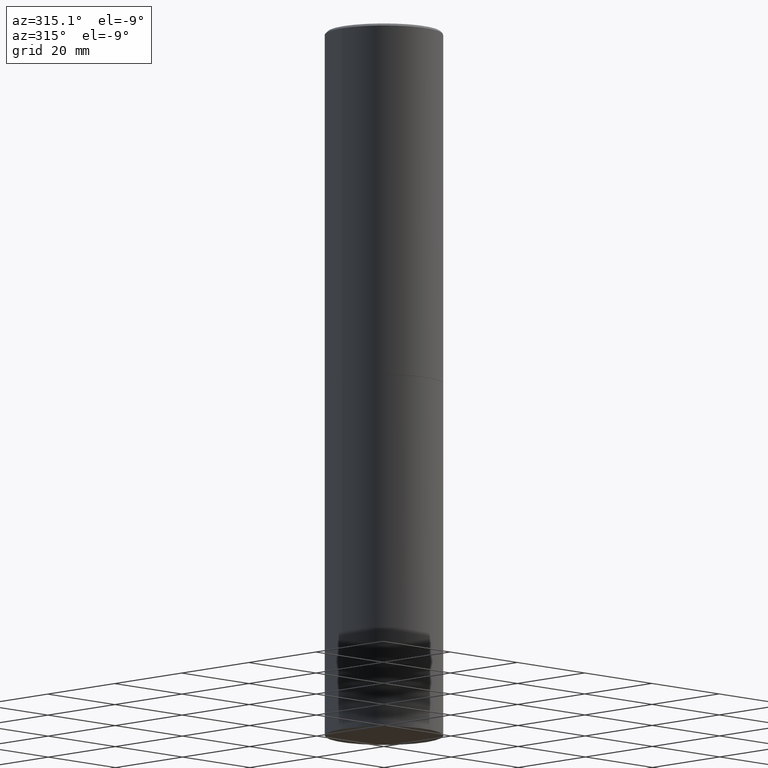
[diagram: clean part render]
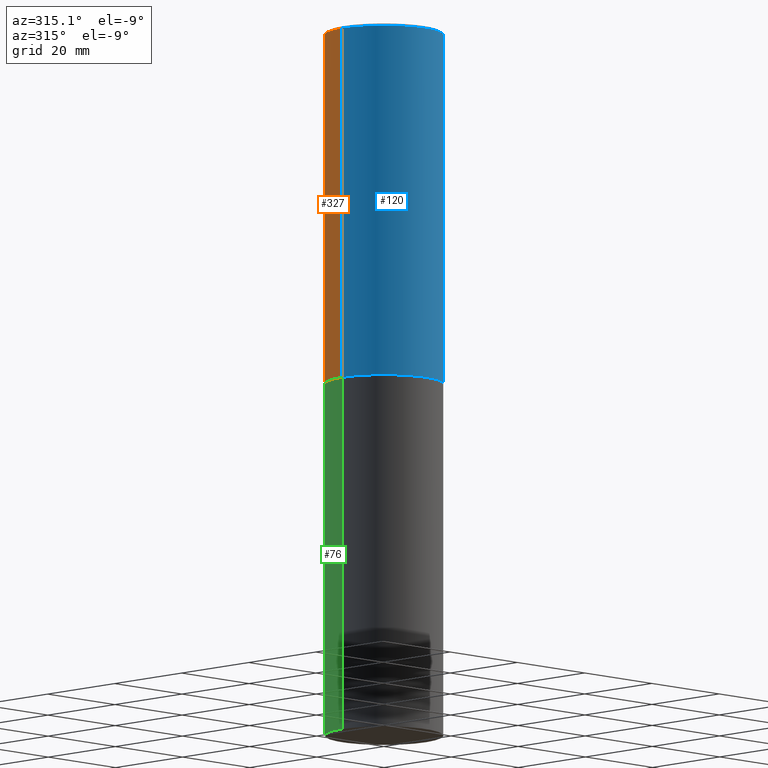
[diagram: same view with three faces highlighted in distinct colors, each labeled with its STEP entity id]
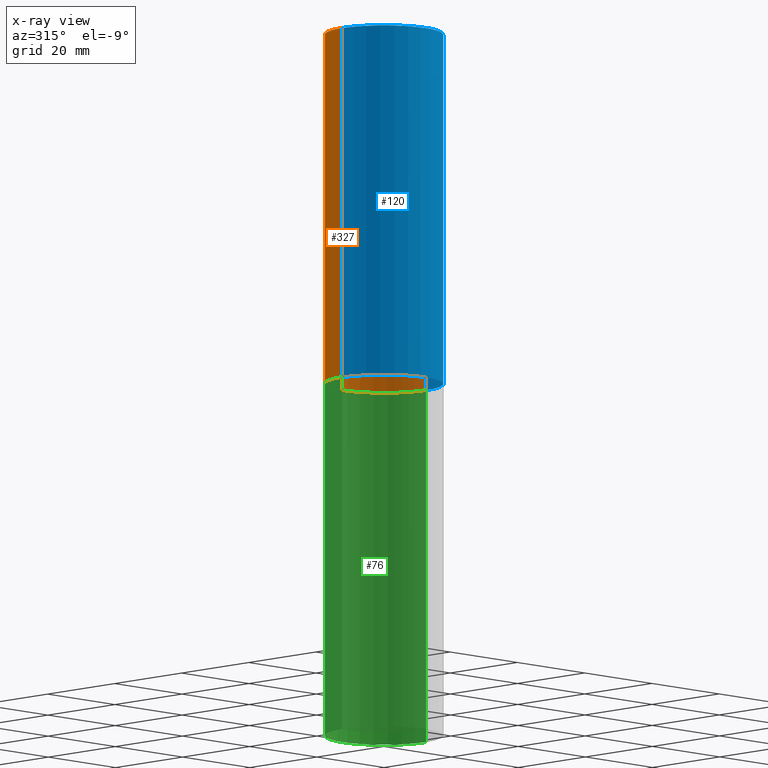
[diagram: x-ray of the same camera — body ghosted, the three highlighted faces saturated]
A machine part, auxiliary view with three faces highlighted in distinct colors.
The next image is the same camera in x-ray (body ghosted, the three faces saturated) — at least one of them is partly hidden behind the body in this view.
Their STEP definitions:

[orange] entity #327 — the highlighted cylindrical surface (partial cylindrical patch) has radius 12.5006 mm, axis along (-0, 0, 1).
#2 = VERTEX_POINT ( 'NONE', #101 ) ;
#18 = ORIENTED_EDGE ( 'NONE', *, *, #365, .T. ) ;
#20 = DIRECTION ( 'NONE',  ( 1.000000000000000000, -6.982962677686265922E-15, 0.000000000000000000 ) ) ;
#21 = LINE ( 'NONE', #43, #293 ) ;
#25 = VERTEX_POINT ( 'NONE', #50 ) ;
#36 = EDGE_CURVE ( 'NONE', #25, #310, #21, .T. ) ;
#43 = CARTESIAN_POINT ( 'NONE',  ( -0.4921499999999998098, 3.496936074043331714E-15, -2.420853904668950949E-29 ) ) ;
#44 = EDGE_CURVE ( 'NONE', #2, #302, #255, .T. ) ;
#47 = ORIENTED_EDGE ( 'NONE', *, *, #36, .T. ) ;
#50 = CARTESIAN_POINT ( 'NONE',  ( -0.4921499999999999764, -1.690881473276754954E-15, -2.951700000000000212 ) ) ;
#54 = AXIS2_PLACEMENT_3D ( 'NONE', #356, #69, #308 ) ;
#55 = EDGE_CURVE ( 'NONE', #302, #310, #162, .T. ) ;
#69 = DIRECTION ( 'NONE',  ( -2.445468806185136597E-29, 3.491481338843145583E-15, 1.000000000000000000 ) ) ;
#88 = FACE_OUTER_BOUND ( 'NONE', #170, .T. ) ;
#101 = CARTESIAN_POINT ( 'NONE',  ( 0.4921499999999999764, -1.374247054968660936E-14, -2.951700000000000212 ) ) ;
#117 = AXIS2_PLACEMENT_3D ( 'NONE', #359, #259, #20 ) ;
#134 = DIRECTION ( 'NONE',  ( -2.445468806185136877E-29, 3.491481338843145188E-15, 1.000000000000000000 ) ) ;
#162 = CIRCLE ( 'NONE', #54, 0.4921499999999996988 ) ;
#166 = CARTESIAN_POINT ( 'NONE',  ( -0.4921499999999996988, 3.366835455046430506E-15, -0.02000000000000009409 ) ) ;
#170 = EDGE_LOOP ( 'NONE', ( #18, #47, #335, #363 ) ) ;
#187 = DIRECTION ( 'NONE',  ( -2.445468806185136877E-29, 3.491481338843145188E-15, 1.000000000000000000 ) ) ;
#192 = DIRECTION ( 'NONE',  ( 1.000000000000000000, -6.982962677686265922E-15, 4.876176775795935793E-29 ) ) ;
#216 = CARTESIAN_POINT ( 'NONE',  ( 0.4921499999999998098, -3.436665081823294593E-15, 2.399810400207968762E-29 ) ) ;
#227 = DIRECTION ( 'NONE',  ( -2.445468806185136597E-29, 3.491481338843145583E-15, 1.000000000000000000 ) ) ;
#255 = LINE ( 'NONE', #216, #289 ) ;
#256 = CIRCLE ( 'NONE', #117, 0.4921499999999999764 ) ;
#259 = DIRECTION ( 'NONE',  ( -2.445468806185136597E-29, 3.491481338843145583E-15, 1.000000000000000000 ) ) ;
#289 = VECTOR ( 'NONE', #187, 39.37007874015748143 ) ;
#290 = CARTESIAN_POINT ( 'NONE',  ( 0.4921499999999996988, -3.446223716380120377E-15, -0.02000000000000009409 ) ) ;
#293 = VECTOR ( 'NONE', #134, 39.37007874015748143 ) ;
#294 = AXIS2_PLACEMENT_3D ( 'NONE', #343, #227, #192 ) ;
#302 = VERTEX_POINT ( 'NONE', #290 ) ;
#308 = DIRECTION ( 'NONE',  ( 1.000000000000000000, -6.982962677686265922E-15, 0.000000000000000000 ) ) ;
#310 = VERTEX_POINT ( 'NONE', #166 ) ;
#327 = ADVANCED_FACE ( 'NONE', ( #88 ), #339, .T. ) ;
#335 = ORIENTED_EDGE ( 'NONE', *, *, #55, .F. ) ;
#339 = CYLINDRICAL_SURFACE ( 'NONE', #294, 0.4921499999999998098 ) ;
#343 = CARTESIAN_POINT ( 'NONE',  ( 0.000000000000000000, 0.000000000000000000, 0.000000000000000000 ) ) ;
#356 = CARTESIAN_POINT ( 'NONE',  ( 4.890937612370296805E-31, -6.982962677686323656E-17, -0.02000000000000009409 ) ) ;
#359 = CARTESIAN_POINT ( 'NONE',  ( 7.218290275216666916E-29, -1.030580546786331359E-14, -2.951700000000000212 ) ) ;
#363 = ORIENTED_EDGE ( 'NONE', *, *, #44, .F. ) ;
#365 = EDGE_CURVE ( 'NONE', #2, #25, #256, .T. ) ;

[blue] entity #120 — the highlighted cylindrical surface (partial cylindrical patch) has radius 12.5006 mm, axis along (-0, 0, 1).
#2 = VERTEX_POINT ( 'NONE', #101 ) ;
#6 = CARTESIAN_POINT ( 'NONE',  ( 0.000000000000000000, 0.000000000000000000, 0.000000000000000000 ) ) ;
#21 = LINE ( 'NONE', #43, #293 ) ;
#22 = AXIS2_PLACEMENT_3D ( 'NONE', #6, #149, #177 ) ;
#25 = VERTEX_POINT ( 'NONE', #50 ) ;
#34 = AXIS2_PLACEMENT_3D ( 'NONE', #154, #243, #292 ) ;
#36 = EDGE_CURVE ( 'NONE', #25, #310, #21, .T. ) ;
#42 = DIRECTION ( 'NONE',  ( -2.445468806185136597E-29, 3.491481338843145583E-15, 1.000000000000000000 ) ) ;
#43 = CARTESIAN_POINT ( 'NONE',  ( -0.4921499999999998098, 3.496936074043331714E-15, -2.420853904668950949E-29 ) ) ;
#44 = EDGE_CURVE ( 'NONE', #2, #302, #255, .T. ) ;
#50 = CARTESIAN_POINT ( 'NONE',  ( -0.4921499999999999764, -1.690881473276754954E-15, -2.951700000000000212 ) ) ;
#53 = ORIENTED_EDGE ( 'NONE', *, *, #357, .T. ) ;
#73 = CARTESIAN_POINT ( 'NONE',  ( 7.218290275216666916E-29, -1.030580546786331359E-14, -2.951700000000000212 ) ) ;
#99 = EDGE_CURVE ( 'NONE', #310, #302, #105, .T. ) ;
#101 = CARTESIAN_POINT ( 'NONE',  ( 0.4921499999999999764, -1.374247054968660936E-14, -2.951700000000000212 ) ) ;
#105 = CIRCLE ( 'NONE', #34, 0.4921499999999996988 ) ;
#120 = ADVANCED_FACE ( 'NONE', ( #211 ), #321, .T. ) ;
#127 = ORIENTED_EDGE ( 'NONE', *, *, #44, .T. ) ;
#134 = DIRECTION ( 'NONE',  ( -2.445468806185136877E-29, 3.491481338843145188E-15, 1.000000000000000000 ) ) ;
#142 = DIRECTION ( 'NONE',  ( 1.000000000000000000, -6.982962677686265922E-15, 0.000000000000000000 ) ) ;
#149 = DIRECTION ( 'NONE',  ( -2.445468806185136597E-29, 3.491481338843145583E-15, 1.000000000000000000 ) ) ;
#154 = CARTESIAN_POINT ( 'NONE',  ( 4.890937612370296805E-31, -6.982962677686323656E-17, -0.02000000000000009409 ) ) ;
#166 = CARTESIAN_POINT ( 'NONE',  ( -0.4921499999999996988, 3.366835455046430506E-15, -0.02000000000000009409 ) ) ;
#177 = DIRECTION ( 'NONE',  ( 1.000000000000000000, -6.982962677686265922E-15, 4.876176775795935793E-29 ) ) ;
#187 = DIRECTION ( 'NONE',  ( -2.445468806185136877E-29, 3.491481338843145188E-15, 1.000000000000000000 ) ) ;
#209 = CIRCLE ( 'NONE', #347, 0.4921499999999999764 ) ;
#211 = FACE_OUTER_BOUND ( 'NONE', #231, .T. ) ;
#216 = CARTESIAN_POINT ( 'NONE',  ( 0.4921499999999998098, -3.436665081823294593E-15, 2.399810400207968762E-29 ) ) ;
#231 = EDGE_LOOP ( 'NONE', ( #249, #53, #127, #324 ) ) ;
#243 = DIRECTION ( 'NONE',  ( -2.445468806185136597E-29, 3.491481338843145583E-15, 1.000000000000000000 ) ) ;
#249 = ORIENTED_EDGE ( 'NONE', *, *, #36, .F. ) ;
#255 = LINE ( 'NONE', #216, #289 ) ;
#289 = VECTOR ( 'NONE', #187, 39.37007874015748143 ) ;
#290 = CARTESIAN_POINT ( 'NONE',  ( 0.4921499999999996988, -3.446223716380120377E-15, -0.02000000000000009409 ) ) ;
#292 = DIRECTION ( 'NONE',  ( 1.000000000000000000, -6.982962677686265922E-15, 0.000000000000000000 ) ) ;
#293 = VECTOR ( 'NONE', #134, 39.37007874015748143 ) ;
#302 = VERTEX_POINT ( 'NONE', #290 ) ;
#310 = VERTEX_POINT ( 'NONE', #166 ) ;
#321 = CYLINDRICAL_SURFACE ( 'NONE', #22, 0.4921499999999998098 ) ;
#324 = ORIENTED_EDGE ( 'NONE', *, *, #99, .F. ) ;
#347 = AXIS2_PLACEMENT_3D ( 'NONE', #73, #42, #142 ) ;
#357 = EDGE_CURVE ( 'NONE', #25, #2, #209, .T. ) ;

[green] entity #76 — the highlighted cylindrical surface (partial cylindrical patch) has radius 12.5006 mm, axis along (-0, 0, 1).
#4 = DIRECTION ( 'NONE',  ( -2.445468806185136597E-29, 3.491481338843145583E-15, 1.000000000000000000 ) ) ;
#7 = CARTESIAN_POINT ( 'NONE',  ( 1.444171603492632270E-28, -2.061894304653819197E-14, -5.905499999999999972 ) ) ;
#31 = AXIS2_PLACEMENT_3D ( 'NONE', #202, #4, #276 ) ;
#39 = CIRCLE ( 'NONE', #225, 0.4921499999999999764 ) ;
#60 = DIRECTION ( 'NONE',  ( 1.000000000000000000, -6.982962677686265922E-15, 0.000000000000000000 ) ) ;
#61 = EDGE_CURVE ( 'NONE', #189, #104, #181, .T. ) ;
#70 = EDGE_CURVE ( 'NONE', #189, #360, #39, .T. ) ;
#76 = ADVANCED_FACE ( 'NONE', ( #318 ), #210, .T. ) ;
#90 = CARTESIAN_POINT ( 'NONE',  ( -0.4921499999999999764, -1.196718392382684217E-14, -2.952700000000000102 ) ) ;
#102 = EDGE_LOOP ( 'NONE', ( #219, #351, #311, #215 ) ) ;
#104 = VERTEX_POINT ( 'NONE', #271 ) ;
#129 = DIRECTION ( 'NONE',  ( -2.445468806185136877E-29, 3.491481338843145188E-15, 1.000000000000000000 ) ) ;
#143 = VERTEX_POINT ( 'NONE', #90 ) ;
#151 = DIRECTION ( 'NONE',  ( 1.000000000000000000, -6.982962677686265922E-15, 0.000000000000000000 ) ) ;
#157 = CARTESIAN_POINT ( 'NONE',  ( 0.4921499999999999764, -3.436665081823295777E-15, 2.399810400207969603E-29 ) ) ;
#160 = LINE ( 'NONE', #313, #193 ) ;
#179 = CARTESIAN_POINT ( 'NONE',  ( -0.4921499999999999764, -1.196718392382684217E-14, -5.905499999999999972 ) ) ;
#181 = LINE ( 'NONE', #157, #188 ) ;
#188 = VECTOR ( 'NONE', #129, 39.37007874015748143 ) ;
#189 = VERTEX_POINT ( 'NONE', #291 ) ;
#193 = VECTOR ( 'NONE', #309, 39.37007874015748143 ) ;
#194 = CIRCLE ( 'NONE', #199, 0.4921499999999999764 ) ;
#199 = AXIS2_PLACEMENT_3D ( 'NONE', #288, #366, #60 ) ;
#202 = CARTESIAN_POINT ( 'NONE',  ( 0.000000000000000000, 0.000000000000000000, 0.000000000000000000 ) ) ;
#210 = CYLINDRICAL_SURFACE ( 'NONE', #31, 0.4921499999999999764 ) ;
#215 = ORIENTED_EDGE ( 'NONE', *, *, #61, .F. ) ;
#219 = ORIENTED_EDGE ( 'NONE', *, *, #70, .T. ) ;
#221 = EDGE_CURVE ( 'NONE', #360, #143, #160, .T. ) ;
#225 = AXIS2_PLACEMENT_3D ( 'NONE', #7, #316, #151 ) ;
#271 = CARTESIAN_POINT ( 'NONE',  ( 0.4921499999999999764, -1.374596203102545079E-14, -2.952700000000000102 ) ) ;
#273 = EDGE_CURVE ( 'NONE', #104, #143, #194, .T. ) ;
#276 = DIRECTION ( 'NONE',  ( 1.000000000000000000, -6.982962677686265922E-15, 4.876176775795935793E-29 ) ) ;
#288 = CARTESIAN_POINT ( 'NONE',  ( 7.220735744022852519E-29, -1.030929694920215502E-14, -2.952700000000000102 ) ) ;
#291 = CARTESIAN_POINT ( 'NONE',  ( 0.4921499999999999764, -2.405560812836148932E-14, -5.905499999999999972 ) ) ;
#309 = DIRECTION ( 'NONE',  ( -2.445468806185136877E-29, 3.491481338843145188E-15, 1.000000000000000000 ) ) ;
#311 = ORIENTED_EDGE ( 'NONE', *, *, #273, .F. ) ;
#313 = CARTESIAN_POINT ( 'NONE',  ( -0.4921499999999999764, 3.496936074043332897E-15, -2.420853904668951509E-29 ) ) ;
#316 = DIRECTION ( 'NONE',  ( -2.445468806185136597E-29, 3.491481338843145583E-15, 1.000000000000000000 ) ) ;
#318 = FACE_OUTER_BOUND ( 'NONE', #102, .T. ) ;
#351 = ORIENTED_EDGE ( 'NONE', *, *, #221, .T. ) ;
#360 = VERTEX_POINT ( 'NONE', #179 ) ;
#366 = DIRECTION ( 'NONE',  ( -2.445468806185136597E-29, 3.491481338843145583E-15, 1.000000000000000000 ) ) ;